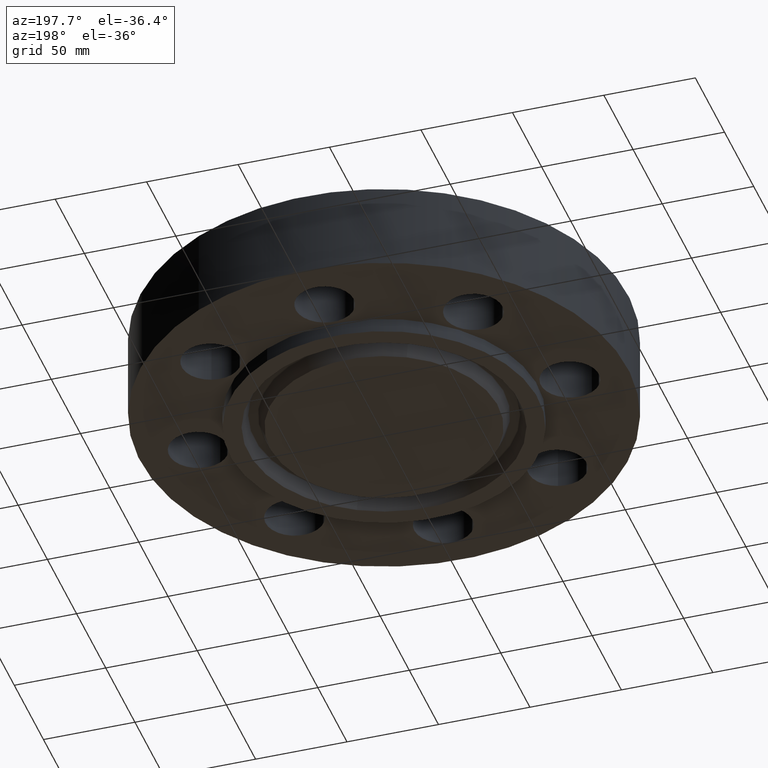
[diagram: clean part render]
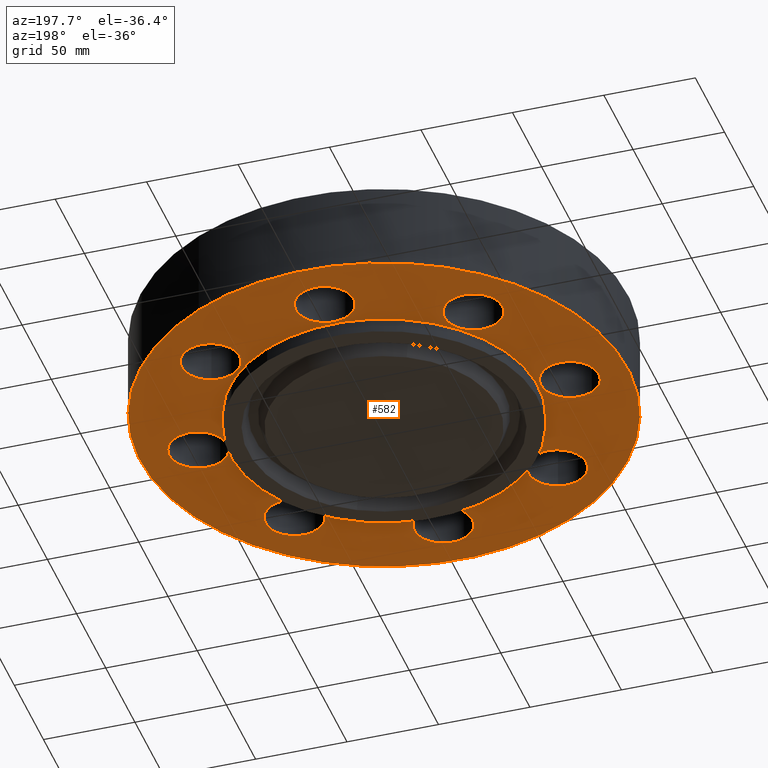
[diagram: same view with one face highlighted and labeled with its STEP entity id]
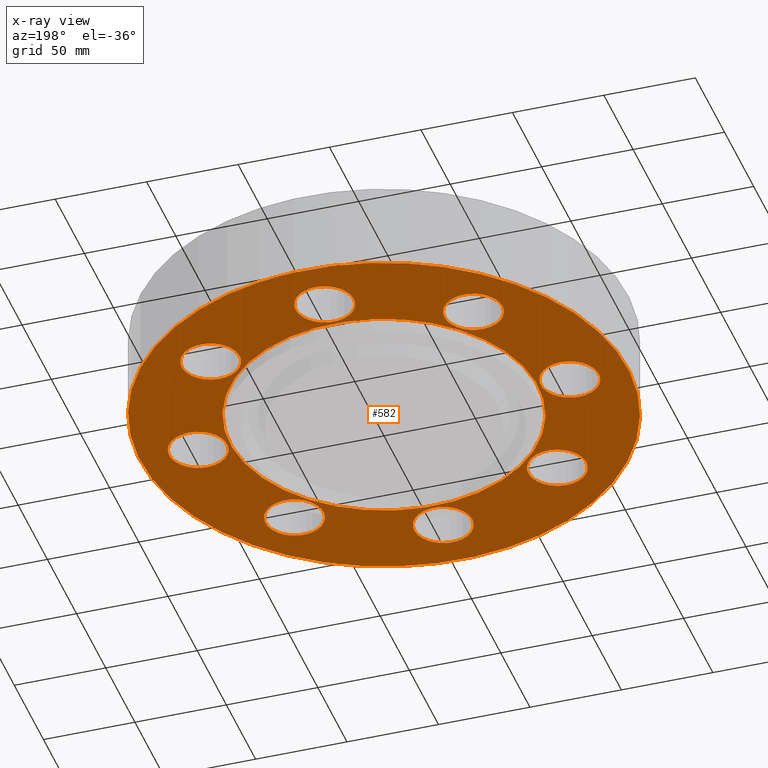
[diagram: x-ray of the same camera — body ghosted, the highlighted face saturated]
A machine part, auxiliary view. The second image highlights one B-rep face of the part: STEP entity #582.
The next image is the same camera in x-ray: the body ghosted, the highlighted face saturated — about 0% of this face is hidden behind the body in this view.
In plain terms, the highlighted planar face has unit normal (0, 0, -1).
Its self-contained STEP definition (entity closure, byte-faithful):
#112=AXIS2_PLACEMENT_3D('Circle Axis2P3D',#110,#111,$) ;
#138=AXIS2_PLACEMENT_3D('Circle Axis2P3D',#136,#137,$) ;
#169=AXIS2_PLACEMENT_3D('Circle Axis2P3D',#167,#168,$) ;
#195=AXIS2_PLACEMENT_3D('Circle Axis2P3D',#193,#194,$) ;
#226=AXIS2_PLACEMENT_3D('Circle Axis2P3D',#224,#225,$) ;
#252=AXIS2_PLACEMENT_3D('Circle Axis2P3D',#250,#251,$) ;
#283=AXIS2_PLACEMENT_3D('Circle Axis2P3D',#281,#282,$) ;
#309=AXIS2_PLACEMENT_3D('Circle Axis2P3D',#307,#308,$) ;
#340=AXIS2_PLACEMENT_3D('Circle Axis2P3D',#338,#339,$) ;
#366=AXIS2_PLACEMENT_3D('Circle Axis2P3D',#364,#365,$) ;
#397=AXIS2_PLACEMENT_3D('Circle Axis2P3D',#395,#396,$) ;
#423=AXIS2_PLACEMENT_3D('Circle Axis2P3D',#421,#422,$) ;
#454=AXIS2_PLACEMENT_3D('Circle Axis2P3D',#452,#453,$) ;
#480=AXIS2_PLACEMENT_3D('Circle Axis2P3D',#478,#479,$) ;
#498=AXIS2_PLACEMENT_3D('Plane Axis2P3D',#495,#496,#497) ;
#502=AXIS2_PLACEMENT_3D('Circle Axis2P3D',#500,#501,$) ;
#511=AXIS2_PLACEMENT_3D('Circle Axis2P3D',#509,#510,$) ;
#520=AXIS2_PLACEMENT_3D('Circle Axis2P3D',#518,#519,$) ;
#529=AXIS2_PLACEMENT_3D('Circle Axis2P3D',#527,#528,$) ;
#538=AXIS2_PLACEMENT_3D('Circle Axis2P3D',#536,#537,$) ;
#547=AXIS2_PLACEMENT_3D('Circle Axis2P3D',#545,#546,$) ;
#105=CARTESIAN_POINT('Vertex',(3.00438933172,2.22870860601,0.)) ;
#110=CARTESIAN_POINT('Axis2P3D Location',(2.82842712476,2.82842712476,0.)) ;
#114=CARTESIAN_POINT('Vertex',(2.65246491779,3.4281456435,0.)) ;
#136=CARTESIAN_POINT('Axis2P3D Location',(2.82842712476,2.82842712476,0.)) ;
#162=CARTESIAN_POINT('Vertex',(-0.548489101184,-3.70035903839,0.)) ;
#167=CARTESIAN_POINT('Axis2P3D Location',(4.89858719661E-016,-4.00000000002,0.)) ;
#171=CARTESIAN_POINT('Vertex',(0.548489101184,-4.29964096164,0.)) ;
#193=CARTESIAN_POINT('Axis2P3D Location',(4.89858719661E-016,-4.00000000002,0.)) ;
#219=CARTESIAN_POINT('Vertex',(-2.22870860601,3.00438933172,0.)) ;
#224=CARTESIAN_POINT('Axis2P3D Location',(-2.82842712476,2.82842712476,0.)) ;
#228=CARTESIAN_POINT('Vertex',(-3.4281456435,2.65246491779,0.)) ;
#250=CARTESIAN_POINT('Axis2P3D Location',(-2.82842712476,2.82842712476,0.)) ;
#276=CARTESIAN_POINT('Vertex',(2.22870860601,-3.00438933172,0.)) ;
#281=CARTESIAN_POINT('Axis2P3D Location',(2.82842712476,-2.82842712476,0.)) ;
#285=CARTESIAN_POINT('Vertex',(3.4281456435,-2.65246491779,0.)) ;
#307=CARTESIAN_POINT('Axis2P3D Location',(2.82842712476,-2.82842712476,0.)) ;
#333=CARTESIAN_POINT('Vertex',(-3.70035903839,0.548489101184,0.)) ;
#338=CARTESIAN_POINT('Axis2P3D Location',(-4.00000000002,-1.75305610389E-016,0.)) ;
#342=CARTESIAN_POINT('Vertex',(-4.29964096164,-0.548489101184,0.)) ;
#364=CARTESIAN_POINT('Axis2P3D Location',(-4.00000000002,-1.75305610389E-016,0.)) ;
#390=CARTESIAN_POINT('Vertex',(3.70035903839,-0.548489101184,0.)) ;
#395=CARTESIAN_POINT('Axis2P3D Location',(4.00000000002,2.4492935983E-016,0.)) ;
#399=CARTESIAN_POINT('Vertex',(4.29964096164,0.548489101184,0.)) ;
#421=CARTESIAN_POINT('Axis2P3D Location',(4.00000000002,2.4492935983E-016,0.)) ;
#447=CARTESIAN_POINT('Vertex',(-3.00438933172,-2.22870860601,0.)) ;
#452=CARTESIAN_POINT('Axis2P3D Location',(-2.82842712476,-2.82842712476,0.)) ;
#456=CARTESIAN_POINT('Vertex',(-2.65246491779,-3.4281456435,0.)) ;
#478=CARTESIAN_POINT('Axis2P3D Location',(-2.82842712476,-2.82842712476,0.)) ;
#495=CARTESIAN_POINT('Axis2P3D Location',(0.,3.31250000001,0.)) ;
#500=CARTESIAN_POINT('Axis2P3D Location',(0.,0.,0.)) ;
#504=CARTESIAN_POINT('Vertex',(-2.51698407768,-4.60730844994,5.59482469102E-016)) ;
#506=CARTESIAN_POINT('Vertex',(2.51698407768,4.60730844994,5.59482469102E-016)) ;
#509=CARTESIAN_POINT('Axis2P3D Location',(0.,0.,0.)) ;
#518=CARTESIAN_POINT('Axis2P3D Location',(5.24514814784E-017,4.00000000002,0.)) ;
#522=CARTESIAN_POINT('Vertex',(0.548489101184,3.70035903839,0.)) ;
#524=CARTESIAN_POINT('Vertex',(-0.548489101184,4.29964096164,0.)) ;
#527=CARTESIAN_POINT('Axis2P3D Location',(-3.49676543189E-017,4.00000000002,0.)) ;
#536=CARTESIAN_POINT('Axis2P3D Location',(0.,0.,0.)) ;
#540=CARTESIAN_POINT('Vertex',(1.58809709663,2.90699223627,2.79741234551E-016)) ;
#542=CARTESIAN_POINT('Vertex',(-1.58809709663,-2.90699223627,2.79741234551E-016)) ;
#545=CARTESIAN_POINT('Axis2P3D Location',(0.,0.,0.)) ;
#111=DIRECTION('Axis2P3D Direction',(0.,-0.,-0.0393700787402)) ;
#137=DIRECTION('Axis2P3D Direction',(0.,-0.,-0.0393700787402)) ;
#168=DIRECTION('Axis2P3D Direction',(-0.,0.,-0.0393700787402)) ;
#194=DIRECTION('Axis2P3D Direction',(-0.,0.,-0.0393700787402)) ;
#225=DIRECTION('Axis2P3D Direction',(0.,0.,-0.0393700787402)) ;
#251=DIRECTION('Axis2P3D Direction',(0.,0.,-0.0393700787402)) ;
#282=DIRECTION('Axis2P3D Direction',(-0.,0.,-0.0393700787402)) ;
#308=DIRECTION('Axis2P3D Direction',(-0.,0.,-0.0393700787402)) ;
#339=DIRECTION('Axis2P3D Direction',(0.,0.,-0.0393700787402)) ;
#365=DIRECTION('Axis2P3D Direction',(0.,0.,-0.0393700787402)) ;
#396=DIRECTION('Axis2P3D Direction',(0.,-0.,-0.0393700787402)) ;
#422=DIRECTION('Axis2P3D Direction',(0.,-0.,-0.0393700787402)) ;
#453=DIRECTION('Axis2P3D Direction',(0.,0.,-0.0393700787402)) ;
#479=DIRECTION('Axis2P3D Direction',(0.,0.,-0.0393700787402)) ;
#496=DIRECTION('Axis2P3D Direction',(0.,0.,-0.0393700787402)) ;
#497=DIRECTION('Axis2P3D XDirection',(0.0393700787402,0.,0.)) ;
#501=DIRECTION('Axis2P3D Direction',(0.,0.,-0.0393700787402)) ;
#510=DIRECTION('Axis2P3D Direction',(0.,0.,-0.0393700787402)) ;
#519=DIRECTION('Axis2P3D Direction',(0.,0.,-0.0393700787402)) ;
#528=DIRECTION('Axis2P3D Direction',(0.,0.,-0.0393700787402)) ;
#537=DIRECTION('Axis2P3D Direction',(0.,0.,-0.0393700787402)) ;
#546=DIRECTION('Axis2P3D Direction',(0.,0.,-0.0393700787402)) ;
#515=ORIENTED_EDGE('',*,*,#508,.T.) ;
#516=ORIENTED_EDGE('',*,*,#513,.T.) ;
#533=ORIENTED_EDGE('',*,*,#526,.F.) ;
#534=ORIENTED_EDGE('',*,*,#531,.F.) ;
#551=ORIENTED_EDGE('',*,*,#544,.F.) ;
#552=ORIENTED_EDGE('',*,*,#549,.F.) ;
#555=ORIENTED_EDGE('',*,*,#140,.F.) ;
#556=ORIENTED_EDGE('',*,*,#116,.F.) ;
#559=ORIENTED_EDGE('',*,*,#425,.F.) ;
#560=ORIENTED_EDGE('',*,*,#401,.F.) ;
#563=ORIENTED_EDGE('',*,*,#311,.F.) ;
#564=ORIENTED_EDGE('',*,*,#287,.F.) ;
#567=ORIENTED_EDGE('',*,*,#197,.F.) ;
#568=ORIENTED_EDGE('',*,*,#173,.F.) ;
#571=ORIENTED_EDGE('',*,*,#482,.F.) ;
#572=ORIENTED_EDGE('',*,*,#458,.F.) ;
#575=ORIENTED_EDGE('',*,*,#368,.F.) ;
#576=ORIENTED_EDGE('',*,*,#344,.F.) ;
#579=ORIENTED_EDGE('',*,*,#254,.F.) ;
#580=ORIENTED_EDGE('',*,*,#230,.F.) ;
#535=FACE_BOUND('',#532,.T.) ;
#553=FACE_BOUND('',#550,.T.) ;
#557=FACE_BOUND('',#554,.T.) ;
#561=FACE_BOUND('',#558,.T.) ;
#565=FACE_BOUND('',#562,.T.) ;
#569=FACE_BOUND('',#566,.T.) ;
#573=FACE_BOUND('',#570,.T.) ;
#577=FACE_BOUND('',#574,.T.) ;
#581=FACE_BOUND('',#578,.T.) ;
#582=ADVANCED_FACE('PartBody',(#517,#535,#553,#557,#561,#565,#569,#573,#577,#581),#499,.T.) ;
#113=CIRCLE('generated circle',#112,0.625000000002) ;
#139=CIRCLE('generated circle',#138,0.625000000002) ;
#170=CIRCLE('generated circle',#169,0.625000000003) ;
#196=CIRCLE('generated circle',#195,0.625000000003) ;
#227=CIRCLE('generated circle',#226,0.625000000003) ;
#253=CIRCLE('generated circle',#252,0.625000000003) ;
#284=CIRCLE('generated circle',#283,0.625000000002) ;
#310=CIRCLE('generated circle',#309,0.625000000002) ;
#341=CIRCLE('generated circle',#340,0.625000000003) ;
#367=CIRCLE('generated circle',#366,0.625000000003) ;
#398=CIRCLE('generated circle',#397,0.625000000003) ;
#424=CIRCLE('generated circle',#423,0.625000000003) ;
#455=CIRCLE('generated circle',#454,0.625000000002) ;
#481=CIRCLE('generated circle',#480,0.625000000002) ;
#503=CIRCLE('generated circle',#502,5.25000000002) ;
#512=CIRCLE('generated circle',#511,5.25000000002) ;
#521=CIRCLE('generated circle',#520,0.625000000003) ;
#530=CIRCLE('generated circle',#529,0.625000000003) ;
#539=CIRCLE('generated circle',#538,3.31250000001) ;
#548=CIRCLE('generated circle',#547,3.31250000001) ;
#116=EDGE_CURVE('',#106,#115,#113,.T.) ;
#140=EDGE_CURVE('',#115,#106,#139,.T.) ;
#173=EDGE_CURVE('',#163,#172,#170,.T.) ;
#197=EDGE_CURVE('',#172,#163,#196,.T.) ;
#230=EDGE_CURVE('',#220,#229,#227,.T.) ;
#254=EDGE_CURVE('',#229,#220,#253,.T.) ;
#287=EDGE_CURVE('',#277,#286,#284,.T.) ;
#311=EDGE_CURVE('',#286,#277,#310,.T.) ;
#344=EDGE_CURVE('',#334,#343,#341,.T.) ;
#368=EDGE_CURVE('',#343,#334,#367,.T.) ;
#401=EDGE_CURVE('',#391,#400,#398,.T.) ;
#425=EDGE_CURVE('',#400,#391,#424,.T.) ;
#458=EDGE_CURVE('',#448,#457,#455,.T.) ;
#482=EDGE_CURVE('',#457,#448,#481,.T.) ;
#508=EDGE_CURVE('',#505,#507,#503,.T.) ;
#513=EDGE_CURVE('',#507,#505,#512,.T.) ;
#526=EDGE_CURVE('',#523,#525,#521,.T.) ;
#531=EDGE_CURVE('',#525,#523,#530,.T.) ;
#544=EDGE_CURVE('',#541,#543,#539,.T.) ;
#549=EDGE_CURVE('',#543,#541,#548,.T.) ;
#514=EDGE_LOOP('',(#515,#516)) ;
#532=EDGE_LOOP('',(#533,#534)) ;
#550=EDGE_LOOP('',(#551,#552)) ;
#554=EDGE_LOOP('',(#555,#556)) ;
#558=EDGE_LOOP('',(#559,#560)) ;
#562=EDGE_LOOP('',(#563,#564)) ;
#566=EDGE_LOOP('',(#567,#568)) ;
#570=EDGE_LOOP('',(#571,#572)) ;
#574=EDGE_LOOP('',(#575,#576)) ;
#578=EDGE_LOOP('',(#579,#580)) ;
#517=FACE_OUTER_BOUND('',#514,.T.) ;
#499=PLANE('',#498) ;
#106=VERTEX_POINT('',#105) ;
#115=VERTEX_POINT('',#114) ;
#163=VERTEX_POINT('',#162) ;
#172=VERTEX_POINT('',#171) ;
#220=VERTEX_POINT('',#219) ;
#229=VERTEX_POINT('',#228) ;
#277=VERTEX_POINT('',#276) ;
#286=VERTEX_POINT('',#285) ;
#334=VERTEX_POINT('',#333) ;
#343=VERTEX_POINT('',#342) ;
#391=VERTEX_POINT('',#390) ;
#400=VERTEX_POINT('',#399) ;
#448=VERTEX_POINT('',#447) ;
#457=VERTEX_POINT('',#456) ;
#505=VERTEX_POINT('',#504) ;
#507=VERTEX_POINT('',#506) ;
#523=VERTEX_POINT('',#522) ;
#525=VERTEX_POINT('',#524) ;
#541=VERTEX_POINT('',#540) ;
#543=VERTEX_POINT('',#542) ;